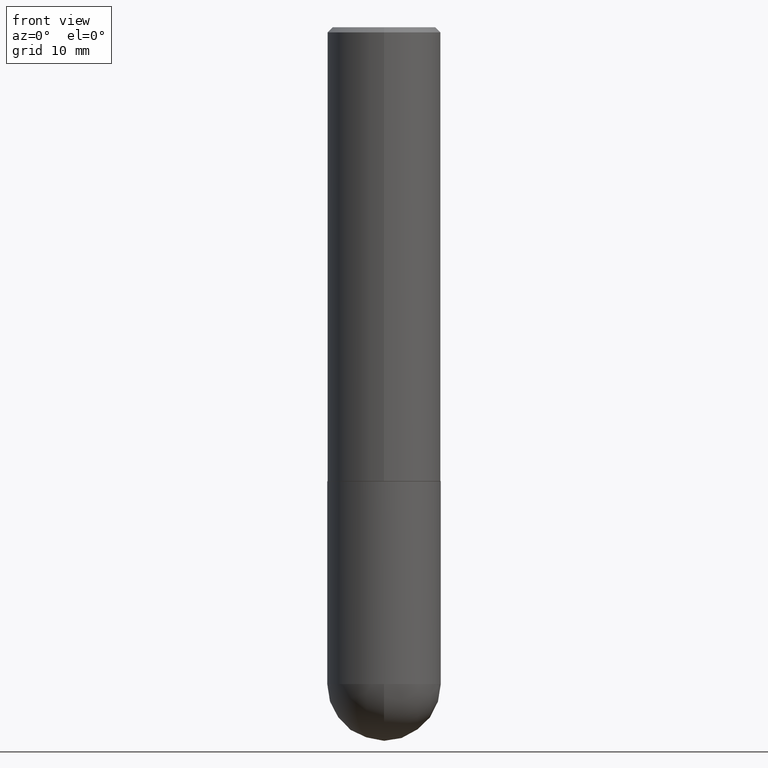
[diagram: clean part render]
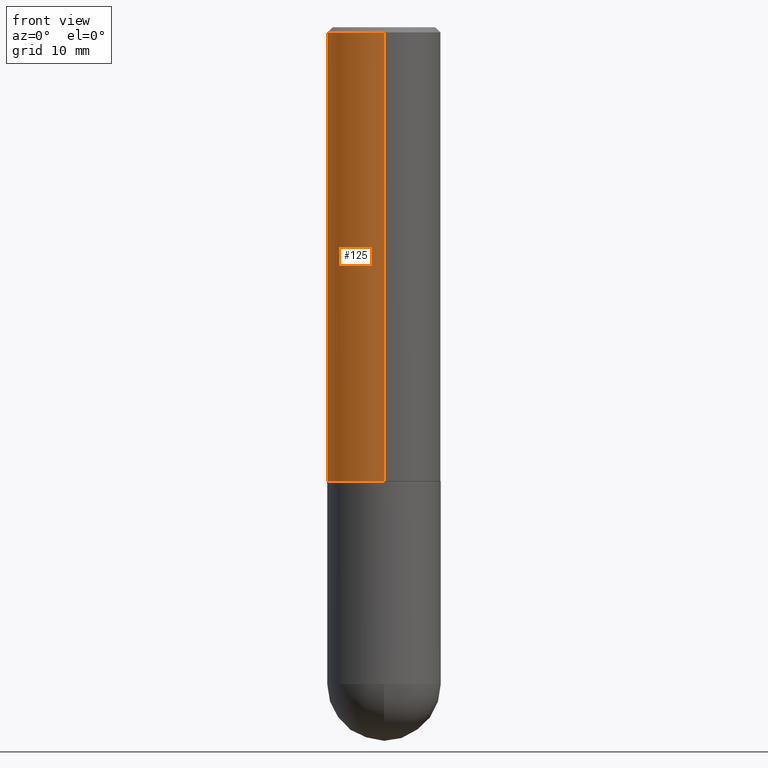
[diagram: same view with one face highlighted and labeled with its STEP entity id]
A machine part, front view. The second image highlights one B-rep face of the part: STEP entity #125.
In plain terms, the highlighted cylindrical surface (partial cylindrical patch) has radius 5.5563 mm, axis along (-0, 0, 1).
Its self-contained STEP definition (entity closure, byte-faithful):
#4 = EDGE_CURVE ( 'NONE', #174, #5, #78, .T. ) ;
#5 = VERTEX_POINT ( 'NONE', #121 ) ;
#7 = CIRCLE ( 'NONE', #86, 0.2187500000000002220 ) ;
#27 = DIRECTION ( 'NONE',  ( -2.445162740445529340E-29, 3.491919642402442968E-15, 1.000000000000000000 ) ) ;
#47 = ORIENTED_EDGE ( 'NONE', *, *, #149, .T. ) ;
#55 = CYLINDRICAL_SURFACE ( 'NONE', #117, 0.2187500000000001388 ) ;
#57 = CARTESIAN_POINT ( 'NONE',  ( -1.527523085743871435E-15, -0.2187500000000001388, 7.638574217755348183E-16 ) ) ;
#77 = FACE_OUTER_BOUND ( 'NONE', #371, .T. ) ;
#78 = CIRCLE ( 'NONE', #211, 0.2187500000000000278 ) ;
#86 = AXIS2_PLACEMENT_3D ( 'NONE', #314, #275, #187 ) ;
#90 = EDGE_CURVE ( 'NONE', #91, #174, #145, .T. ) ;
#91 = VERTEX_POINT ( 'NONE', #272 ) ;
#98 = EDGE_CURVE ( 'NONE', #396, #5, #120, .T. ) ;
#117 = AXIS2_PLACEMENT_3D ( 'NONE', #348, #380, #148 ) ;
#120 = LINE ( 'NONE', #57, #251 ) ;
#121 = CARTESIAN_POINT ( 'NONE',  ( -1.500733937012521938E-15, -0.2187500000000000833, -0.01999999999999928571 ) ) ;
#122 = DIRECTION ( 'NONE',  ( -6.982962677686265922E-15, -1.000000000000000000, 3.492862791899307676E-15 ) ) ;
#125 = ADVANCED_FACE ( 'NONE', ( #77 ), #55, .T. ) ;
#145 = LINE ( 'NONE', #243, #233 ) ;
#148 = DIRECTION ( 'NONE',  ( -6.982962677686265133E-15, -1.000000000000000000, 3.491919642402442574E-15 ) ) ;
#149 = EDGE_CURVE ( 'NONE', #91, #396, #7, .T. ) ;
#154 = CARTESIAN_POINT ( 'NONE',  ( 4.890325480891071152E-31, -6.983839284804902847E-17, -0.02000000000000005246 ) ) ;
#174 = VERTEX_POINT ( 'NONE', #190 ) ;
#187 = DIRECTION ( 'NONE',  ( -6.982962677686265922E-15, -1.000000000000000000, 3.746534391310985612E-15 ) ) ;
#190 = CARTESIAN_POINT ( 'NONE',  ( 1.527523085743871237E-15, 0.2187499999999999445, -0.02000000000000081574 ) ) ;
#211 = AXIS2_PLACEMENT_3D ( 'NONE', #154, #27, #122 ) ;
#233 = VECTOR ( 'NONE', #407, 39.37007874015748143 ) ;
#243 = CARTESIAN_POINT ( 'NONE',  ( 1.554312234475219748E-15, 0.2187500000000001388, -7.638574217755348183E-16 ) ) ;
#245 = DIRECTION ( 'NONE',  ( -2.445162740445529340E-29, 3.491919642402442968E-15, 1.000000000000000000 ) ) ;
#250 = ORIENTED_EDGE ( 'NONE', *, *, #90, .F. ) ;
#251 = VECTOR ( 'NONE', #245, 39.37007874015748143 ) ;
#272 = CARTESIAN_POINT ( 'NONE',  ( 1.554312234475241639E-15, 0.2187499999999941158, -1.749000000000000554 ) ) ;
#275 = DIRECTION ( 'NONE',  ( -2.445162740445529340E-29, 3.491919642402442968E-15, 1.000000000000000000 ) ) ;
#294 = ORIENTED_EDGE ( 'NONE', *, *, #4, .F. ) ;
#298 = ORIENTED_EDGE ( 'NONE', *, *, #98, .T. ) ;
#314 = CARTESIAN_POINT ( 'NONE',  ( 4.276589633039230650E-29, -6.107367454561872318E-15, -1.748999999999999888 ) ) ;
#348 = CARTESIAN_POINT ( 'NONE',  ( 0.000000000000000000, 0.000000000000000000, 0.000000000000000000 ) ) ;
#371 = EDGE_LOOP ( 'NONE', ( #250, #47, #298, #294 ) ) ;
#380 = DIRECTION ( 'NONE',  ( -2.445162740445529340E-29, 3.491919642402442968E-15, 1.000000000000000000 ) ) ;
#396 = VERTEX_POINT ( 'NONE', #397 ) ;
#397 = CARTESIAN_POINT ( 'NONE',  ( -1.527523085743829428E-15, -0.2187500000000063283, -1.748999999999999000 ) ) ;
#407 = DIRECTION ( 'NONE',  ( -2.445162740445529340E-29, 3.491919642402442968E-15, 1.000000000000000000 ) ) ;